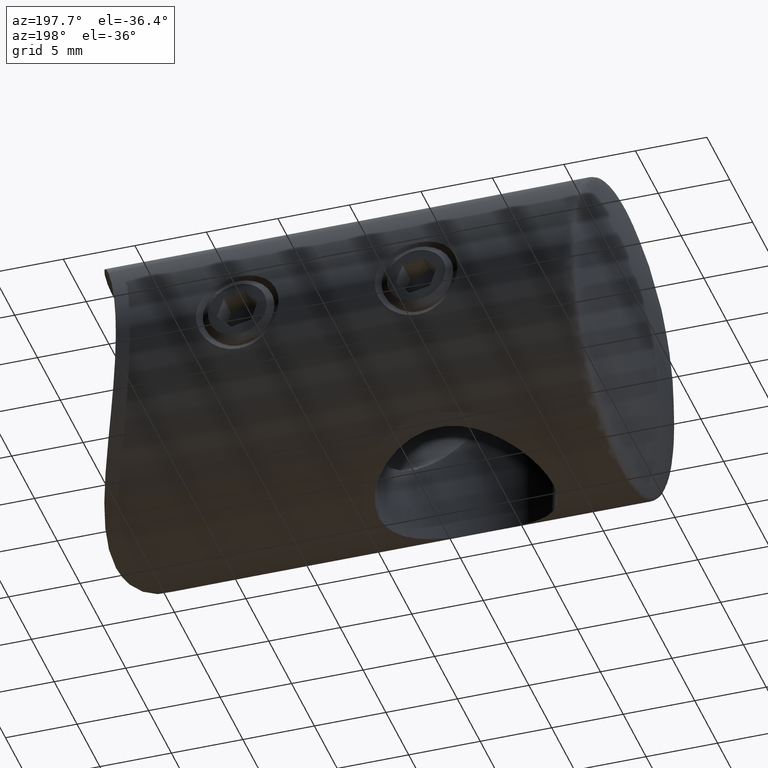
[diagram: clean part render]
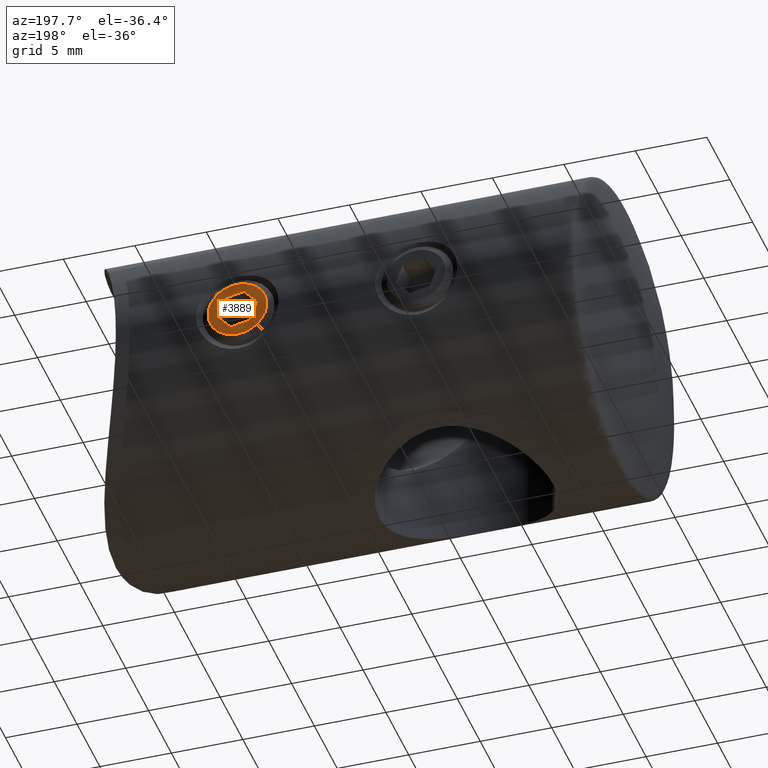
[diagram: same view with one face highlighted and labeled with its STEP entity id]
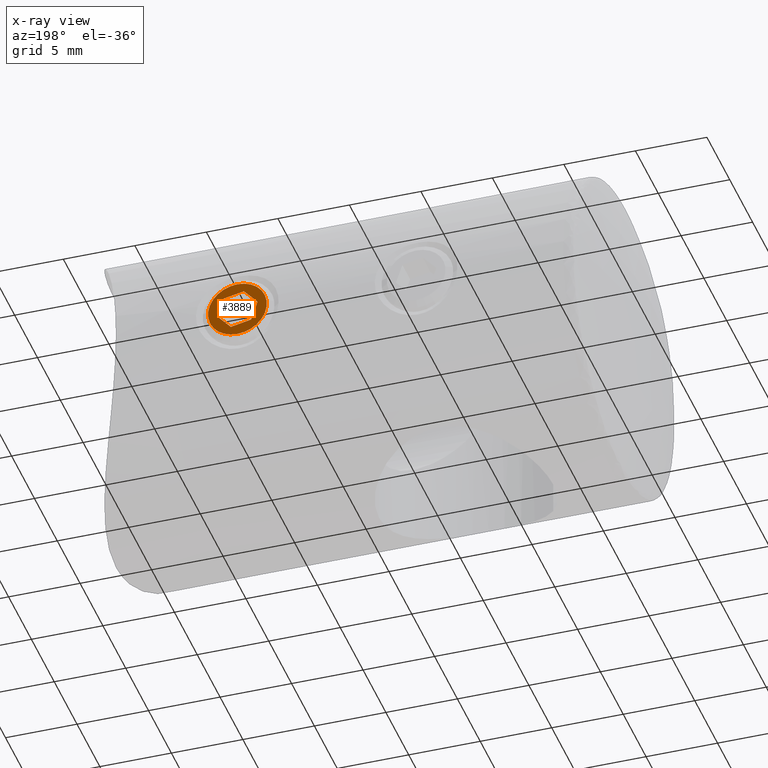
[diagram: x-ray of the same camera — body ghosted, the highlighted face saturated]
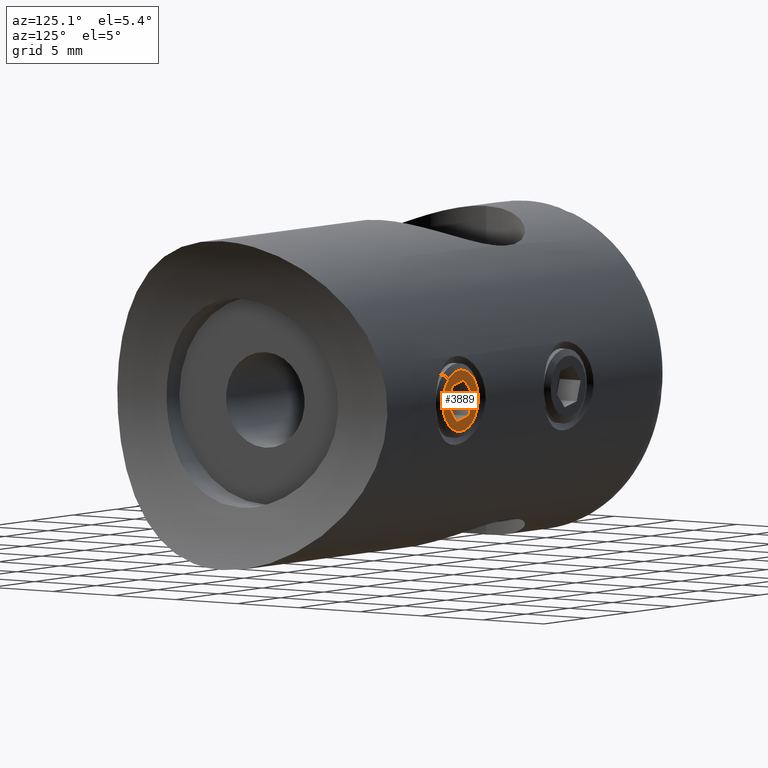
[diagram: same view with one face highlighted and labeled with its STEP entity id]
A machine part, auxiliary view. The second image highlights one B-rep face of the part: STEP entity #3889.
The next image is the same camera in x-ray: the body ghosted, the highlighted face saturated — about 0% of this face is hidden behind the body in this view.
A second angle (auxiliary view) of the same face is appended — the face is thin or edge-on in the first view.
In plain terms, the highlighted planar face has unit normal (0, 1, -0).
Its self-contained STEP definition (entity closure, byte-faithful):
#25 = CARTESIAN_POINT ( 'NONE',  ( 0.0000000000000000000, 1.250000000000002700, -0.7216878364870353800 ) ) ;
#34 = CARTESIAN_POINT ( 'NONE',  ( -0.0000000000000000000, -1.249999999999995100, -0.7216878364870345000 ) ) ;
#108 = ORIENTED_EDGE ( 'NONE', *, *, #873, .T. ) ;
#208 = EDGE_CURVE ( 'NONE', #4263, #3728, #1445, .T. ) ;
#236 = VECTOR ( 'NONE', #5422, 1000.000000000000000 ) ;
#558 = LINE ( 'NONE', #34, #2235 ) ;
#564 = EDGE_CURVE ( 'NONE', #1426, #3713, #964, .T. ) ;
#682 = ORIENTED_EDGE ( 'NONE', *, *, #2469, .F. ) ;
#716 = ORIENTED_EDGE ( 'NONE', *, *, #5451, .T. ) ;
#832 = AXIS2_PLACEMENT_3D ( 'NONE', #4788, #1842, #2719 ) ;
#849 = DIRECTION ( 'NONE',  ( -1.000000000000000000, 0.0000000000000000000, -0.0000000000000000000 ) ) ;
#873 = EDGE_CURVE ( 'NONE', #3713, #5479, #558, .T. ) ;
#964 = LINE ( 'NONE', #2020, #236 ) ;
#974 = LINE ( 'NONE', #25, #1776 ) ;
#1035 = VECTOR ( 'NONE', #3568, 1000.000000000000100 ) ;
#1134 = EDGE_CURVE ( 'NONE', #4263, #4087, #1290, .T. ) ;
#1141 = VERTEX_POINT ( 'NONE', #3507 ) ;
#1236 = CARTESIAN_POINT ( 'NONE',  ( 0.0000000000000000000, 1.250000000000002700, -0.7216878364870353800 ) ) ;
#1263 = AXIS2_PLACEMENT_3D ( 'NONE', #3360, #849, #4698 ) ;
#1290 = LINE ( 'NONE', #3936, #3300 ) ;
#1310 = ORIENTED_EDGE ( 'NONE', *, *, #564, .T. ) ;
#1426 = VERTEX_POINT ( 'NONE', #2889 ) ;
#1445 = LINE ( 'NONE', #3138, #1035 ) ;
#1715 = PLANE ( 'NONE',  #1263 ) ;
#1752 = ORIENTED_EDGE ( 'NONE', *, *, #5058, .T. ) ;
#1776 = VECTOR ( 'NONE', #5202, 1000.000000000000200 ) ;
#1842 = DIRECTION ( 'NONE',  ( -1.000000000000000000, -0.0000000000000000000, -0.0000000000000000000 ) ) ;
#1894 = CARTESIAN_POINT ( 'NONE',  ( 0.0000000000000000000, -1.249999999999995100, 0.7216878364870288300 ) ) ;
#2020 = CARTESIAN_POINT ( 'NONE',  ( 0.0000000000000000000, -1.249999999999995100, 0.7216878364870288300 ) ) ;
#2044 = CARTESIAN_POINT ( 'NONE',  ( 0.0000000000000000000, 4.003803736964326200E-015, 1.443375672974060300 ) ) ;
#2045 = FACE_BOUND ( 'NONE', #3080, .T. ) ;
#2235 = VECTOR ( 'NONE', #2993, 1000.000000000000100 ) ;
#2272 = AXIS2_PLACEMENT_3D ( 'NONE', #3682, #4943, #2395 ) ;
#2395 = DIRECTION ( 'NONE',  ( 0.0000000000000000000, 0.0000000000000000000, 1.000000000000000000 ) ) ;
#2469 = EDGE_CURVE ( 'NONE', #1426, #3728, #2781, .T. ) ;
#2680 = EDGE_LOOP ( 'NONE', ( #1752, #716 ) ) ;
#2719 = DIRECTION ( 'NONE',  ( 0.0000000000000000000, 0.0000000000000000000, 1.000000000000000000 ) ) ;
#2731 = CIRCLE ( 'NONE', #832, 2.055000000000001000 ) ;
#2781 = LINE ( 'NONE', #1894, #3718 ) ;
#2889 = CARTESIAN_POINT ( 'NONE',  ( 0.0000000000000000000, -1.249999999999995100, 0.7216878364870288300 ) ) ;
#2993 = DIRECTION ( 'NONE',  ( 0.0000000000000000000, 0.8660254037844382600, -0.5000000000000005600 ) ) ;
#3080 = EDGE_LOOP ( 'NONE', ( #4149, #3336, #682, #1310, #108, #4677 ) ) ;
#3106 = FACE_OUTER_BOUND ( 'NONE', #2680, .T. ) ;
#3138 = CARTESIAN_POINT ( 'NONE',  ( 0.0000000000000000000, 1.250000000000003100, 0.7216878364870279400 ) ) ;
#3269 = DIRECTION ( 'NONE',  ( 0.0000000000000000000, 0.8660254037844386000, 0.4999999999999998900 ) ) ;
#3300 = VECTOR ( 'NONE', #3470, 1000.000000000000000 ) ;
#3336 = ORIENTED_EDGE ( 'NONE', *, *, #208, .T. ) ;
#3351 = EDGE_CURVE ( 'NONE', #4087, #5479, #974, .T. ) ;
#3360 = CARTESIAN_POINT ( 'NONE',  ( 2.540223623131397100E-016, 0.0000000000000000000, 0.0000000000000000000 ) ) ;
#3470 = DIRECTION ( 'NONE',  ( 0.0000000000000000000, -3.004629197474321000E-016, -1.000000000000000000 ) ) ;
#3507 = CARTESIAN_POINT ( 'NONE',  ( 0.0000000000000000000, 2.789133085058097100E-016, 2.055000000000001000 ) ) ;
#3517 = CARTESIAN_POINT ( 'NONE',  ( 0.0000000000000000000, 3.580377093488947700E-015, -1.443375672974067000 ) ) ;
#3568 = DIRECTION ( 'NONE',  ( 0.0000000000000000000, -0.8660254037844383700, 0.5000000000000004400 ) ) ;
#3682 = CARTESIAN_POINT ( 'NONE',  ( 0.0000000000000000000, 0.0000000000000000000, 0.0000000000000000000 ) ) ;
#3709 = CARTESIAN_POINT ( 'NONE',  ( -0.0000000000000000000, -1.249999999999995100, -0.7216878364870345000 ) ) ;
#3713 = VERTEX_POINT ( 'NONE', #3709 ) ;
#3718 = VECTOR ( 'NONE', #3269, 1000.000000000000200 ) ;
#3728 = VERTEX_POINT ( 'NONE', #2044 ) ;
#3889 = ADVANCED_FACE ( 'NONE', ( #3106, #2045 ), #1715, .T. ) ;
#3936 = CARTESIAN_POINT ( 'NONE',  ( 0.0000000000000000000, 1.250000000000003100, 0.7216878364870279400 ) ) ;
#4087 = VERTEX_POINT ( 'NONE', #1236 ) ;
#4149 = ORIENTED_EDGE ( 'NONE', *, *, #1134, .F. ) ;
#4263 = VERTEX_POINT ( 'NONE', #4380 ) ;
#4380 = CARTESIAN_POINT ( 'NONE',  ( 2.540223623131397100E-016, 1.250000000000003100, 0.7216878364870279400 ) ) ;
#4598 = CIRCLE ( 'NONE', #2272, 2.055000000000001000 ) ;
#4606 = VERTEX_POINT ( 'NONE', #5316 ) ;
#4677 = ORIENTED_EDGE ( 'NONE', *, *, #3351, .F. ) ;
#4698 = DIRECTION ( 'NONE',  ( -0.0000000000000000000, 0.0000000000000000000, 1.000000000000000000 ) ) ;
#4788 = CARTESIAN_POINT ( 'NONE',  ( 0.0000000000000000000, 0.0000000000000000000, 0.0000000000000000000 ) ) ;
#4943 = DIRECTION ( 'NONE',  ( -1.000000000000000000, -0.0000000000000000000, -0.0000000000000000000 ) ) ;
#5058 = EDGE_CURVE ( 'NONE', #4606, #1141, #4598, .T. ) ;
#5202 = DIRECTION ( 'NONE',  ( 0.0000000000000000000, -0.8660254037844386000, -0.5000000000000000000 ) ) ;
#5316 = CARTESIAN_POINT ( 'NONE',  ( 0.0000000000000000000, 0.0000000000000000000, -2.055000000000001000 ) ) ;
#5422 = DIRECTION ( 'NONE',  ( -0.0000000000000000000, 0.0000000000000000000, -1.000000000000000000 ) ) ;
#5451 = EDGE_CURVE ( 'NONE', #1141, #4606, #2731, .T. ) ;
#5479 = VERTEX_POINT ( 'NONE', #3517 ) ;